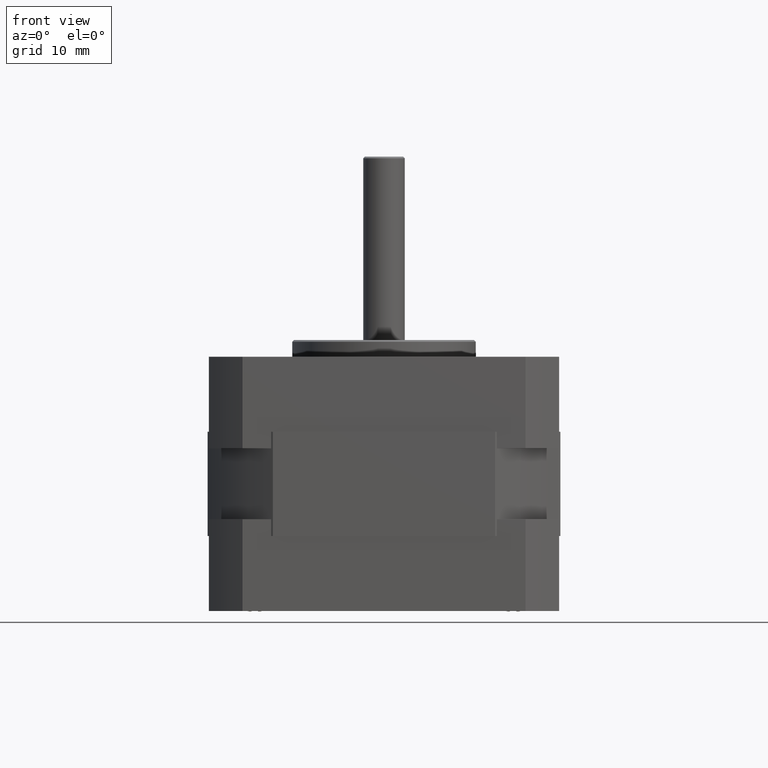
[diagram: clean part render]
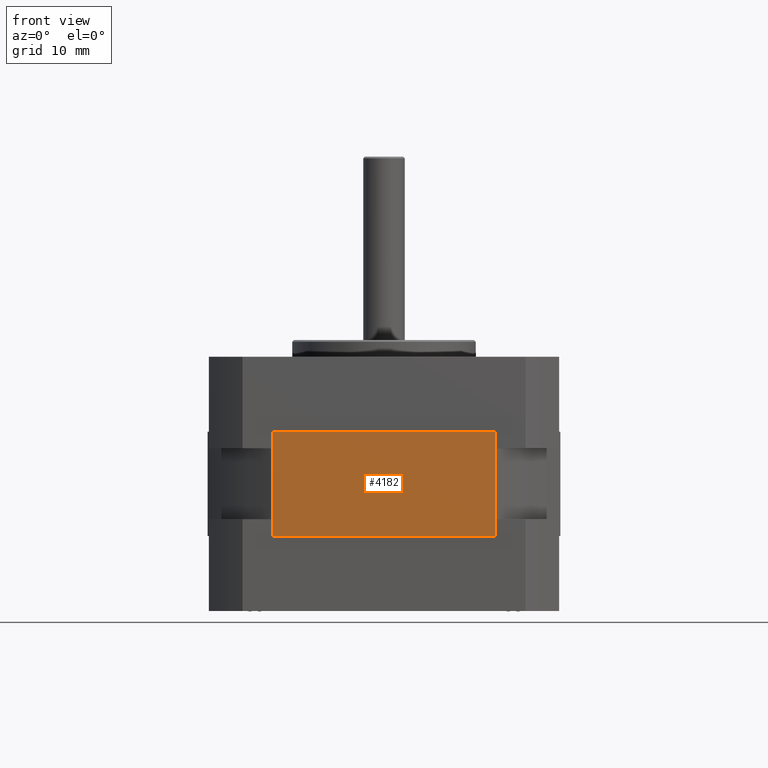
[diagram: same view with one face highlighted and labeled with its STEP entity id]
A machine part, front view. The second image highlights one B-rep face of the part: STEP entity #4182.
In plain terms, the highlighted planar face has unit normal (0, -1, -0).
Its self-contained STEP definition (entity closure, byte-faithful):
#343=LINE('',#7288,#591);
#346=LINE('',#7300,#594);
#348=LINE('',#7304,#596);
#349=LINE('',#7305,#597);
#591=VECTOR('',#5920,10.);
#594=VECTOR('',#5931,10.);
#596=VECTOR('',#5935,10.);
#597=VECTOR('',#5936,10.);
#732=PLANE('',#4698);
#1112=FACE_OUTER_BOUND('',#1446,.T.);
#1446=EDGE_LOOP('',(#3718,#3719,#3720,#3721));
#2062=VERTEX_POINT('',#7285);
#2063=VERTEX_POINT('',#7287);
#2068=VERTEX_POINT('',#7298);
#2069=VERTEX_POINT('',#7303);
#2614=EDGE_CURVE('',#2063,#2062,#343,.T.);
#2620=EDGE_CURVE('',#2068,#2062,#346,.T.);
#2622=EDGE_CURVE('',#2068,#2069,#348,.T.);
#2623=EDGE_CURVE('',#2069,#2063,#349,.T.);
#3718=ORIENTED_EDGE('',*,*,#2622,.T.);
#3719=ORIENTED_EDGE('',*,*,#2623,.T.);
#3720=ORIENTED_EDGE('',*,*,#2614,.T.);
#3721=ORIENTED_EDGE('',*,*,#2620,.F.);
#4182=ADVANCED_FACE('',(#1112),#732,.T.);
#4698=AXIS2_PLACEMENT_3D('',#7302,#5933,#5934);
#5920=DIRECTION('',(1.,1.11059892476091E-15,-9.4368957093138E-16));
#5931=DIRECTION('',(-9.4368957093138E-16,2.46519032881584E-32,-1.));
#5933=DIRECTION('center_axis',(1.11059892476091E-15,-1.,-1.07271252607263E-30));
#5934=DIRECTION('ref_axis',(-8.88178419700125E-16,0.,-1.));
#5935=DIRECTION('',(-1.,-1.11059892476091E-15,9.4368957093138E-16));
#5936=DIRECTION('',(-9.4368957093138E-16,2.46519032881584E-32,-1.));
#7285=CARTESIAN_POINT('',(13.3295723862396,-21.15,-15.5000000000001));
#7287=CARTESIAN_POINT('',(-13.3295723862395,-21.15,-15.5000000000001));
#7288=CARTESIAN_POINT('',(13.3295723862396,-21.15,-15.5000000000001));
#7298=CARTESIAN_POINT('',(13.3295723862396,-21.15,-3.00000000000008));
#7300=CARTESIAN_POINT('',(13.3295723862396,-21.15,-9.25000000000008));
#7302=CARTESIAN_POINT('Origin',(13.3295723862396,-21.15,-9.25000000000008));
#7303=CARTESIAN_POINT('',(-13.3295723862395,-21.15,-3.00000000000006));
#7304=CARTESIAN_POINT('',(13.3295723862396,-21.15,-3.00000000000008));
#7305=CARTESIAN_POINT('',(-13.3295723862395,-21.15,-9.25000000000006));